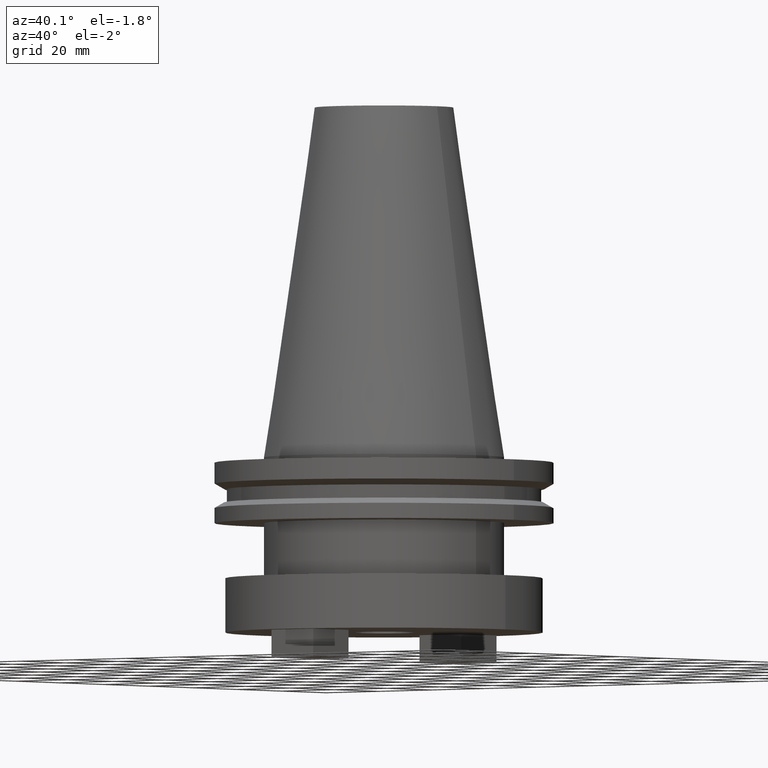
[diagram: clean part render]
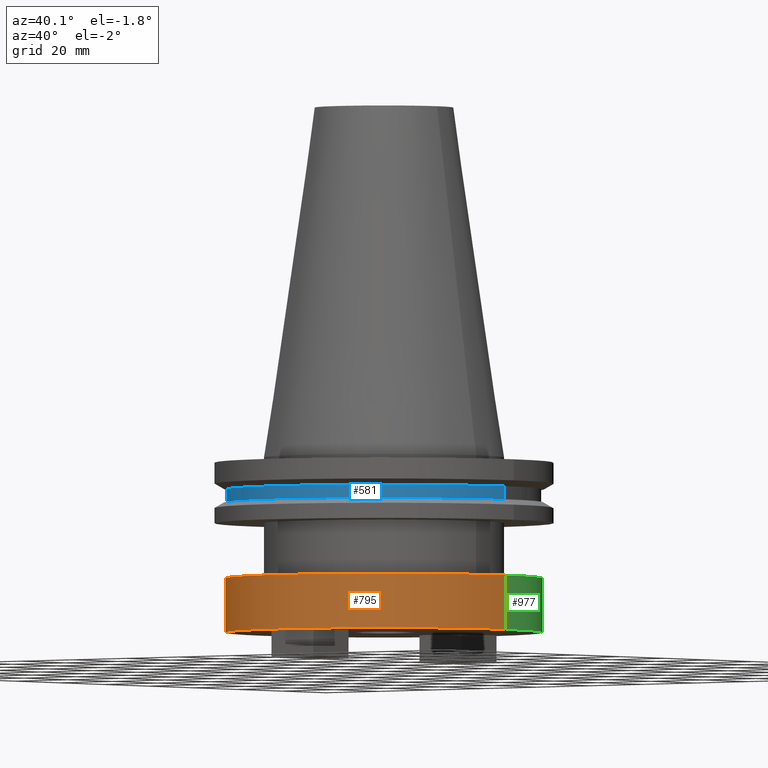
[diagram: same view with three faces highlighted in distinct colors, each labeled with its STEP entity id]
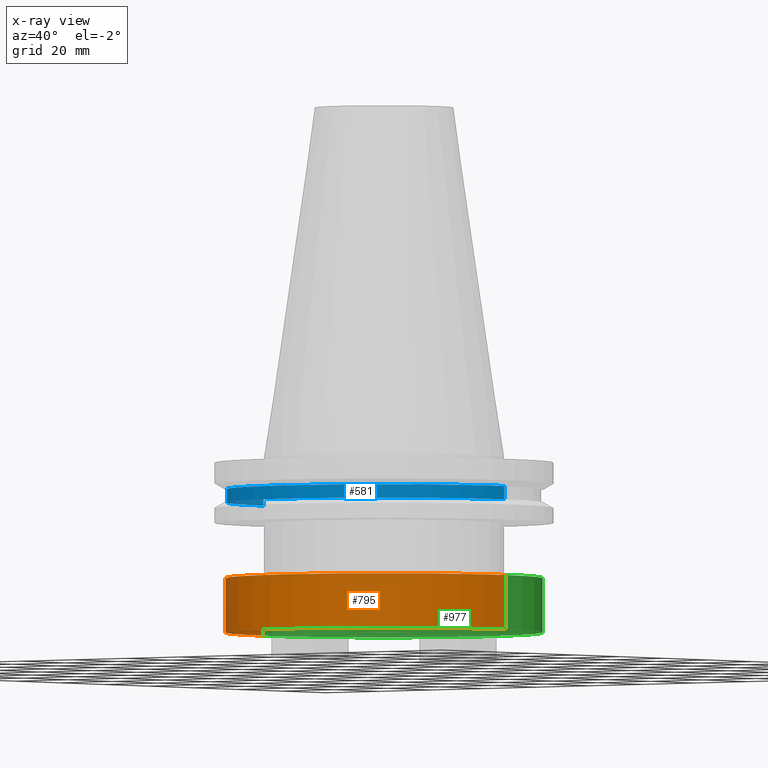
[diagram: x-ray of the same camera — body ghosted, the three highlighted faces saturated]
A machine part, auxiliary view with three faces highlighted in distinct colors.
The next image is the same camera in x-ray (body ghosted, the three faces saturated) — at least one of them is partly hidden behind the body in this view.
Their STEP definitions:

[orange] entity #795 — the highlighted cylindrical surface (partial cylindrical patch) has radius 46.0502 mm, axis along (-0, -0, 1).
#93 = EDGE_LOOP ( 'NONE', ( #716, #783, #389, #459 ) ) ;
#133 = CARTESIAN_POINT ( 'NONE',  ( 0.000000000000000000, 0.000000000000000000, -50.80000000000001137 ) ) ;
#153 = DIRECTION ( 'NONE',  ( -0.000000000000000000, -0.000000000000000000, 1.000000000000000000 ) ) ;
#169 = DIRECTION ( 'NONE',  ( -0.000000000000000000, -0.000000000000000000, 1.000000000000000000 ) ) ;
#177 = CARTESIAN_POINT ( 'NONE',  ( -46.05019999999999669, 5.639523003009544618E-15, 0.000000000000000000 ) ) ;
#208 = AXIS2_PLACEMENT_3D ( 'NONE', #293, #153, #490 ) ;
#214 = FACE_OUTER_BOUND ( 'NONE', #93, .T. ) ;
#236 = DIRECTION ( 'NONE',  ( 1.000000000000000000, 0.000000000000000000, 0.000000000000000000 ) ) ;
#256 = CARTESIAN_POINT ( 'NONE',  ( -46.05019999999999669, 5.639523003009544618E-15, -50.80000000000001137 ) ) ;
#267 = EDGE_CURVE ( 'NONE', #927, #338, #557, .T. ) ;
#293 = CARTESIAN_POINT ( 'NONE',  ( 0.000000000000000000, 0.000000000000000000, 0.000000000000000000 ) ) ;
#307 = DIRECTION ( 'NONE',  ( -0.000000000000000000, -0.000000000000000000, 1.000000000000000000 ) ) ;
#313 = LINE ( 'NONE', #731, #438 ) ;
#338 = VERTEX_POINT ( 'NONE', #569 ) ;
#370 = DIRECTION ( 'NONE',  ( 1.000000000000000000, 0.000000000000000000, 0.000000000000000000 ) ) ;
#389 = ORIENTED_EDGE ( 'NONE', *, *, #610, .T. ) ;
#438 = VECTOR ( 'NONE', #307, 1000.000000000000000 ) ;
#454 = VERTEX_POINT ( 'NONE', #766 ) ;
#459 = ORIENTED_EDGE ( 'NONE', *, *, #794, .F. ) ;
#490 = DIRECTION ( 'NONE',  ( 1.000000000000000000, 0.000000000000000000, 0.000000000000000000 ) ) ;
#557 = CIRCLE ( 'NONE', #876, 46.05019999999999669 ) ;
#569 = CARTESIAN_POINT ( 'NONE',  ( 46.05019999999999669, 0.000000000000000000, -50.80000000000001137 ) ) ;
#593 = VERTEX_POINT ( 'NONE', #994 ) ;
#610 = EDGE_CURVE ( 'NONE', #338, #454, #313, .T. ) ;
#629 = VECTOR ( 'NONE', #169, 1000.000000000000000 ) ;
#655 = DIRECTION ( 'NONE',  ( -0.000000000000000000, -0.000000000000000000, 1.000000000000000000 ) ) ;
#690 = AXIS2_PLACEMENT_3D ( 'NONE', #1076, #655, #236 ) ;
#716 = ORIENTED_EDGE ( 'NONE', *, *, #906, .F. ) ;
#731 = CARTESIAN_POINT ( 'NONE',  ( 46.05019999999999669, 0.000000000000000000, 0.000000000000000000 ) ) ;
#747 = LINE ( 'NONE', #177, #629 ) ;
#766 = CARTESIAN_POINT ( 'NONE',  ( 46.05019999999999669, 0.000000000000000000, -35.04999999999999716 ) ) ;
#783 = ORIENTED_EDGE ( 'NONE', *, *, #267, .T. ) ;
#794 = EDGE_CURVE ( 'NONE', #593, #454, #830, .T. ) ;
#795 = ADVANCED_FACE ( 'NONE', ( #214 ), #905, .T. ) ;
#802 = DIRECTION ( 'NONE',  ( -0.000000000000000000, -0.000000000000000000, 1.000000000000000000 ) ) ;
#830 = CIRCLE ( 'NONE', #690, 46.05019999999999669 ) ;
#876 = AXIS2_PLACEMENT_3D ( 'NONE', #133, #802, #370 ) ;
#905 = CYLINDRICAL_SURFACE ( 'NONE', #208, 46.05019999999999669 ) ;
#906 = EDGE_CURVE ( 'NONE', #927, #593, #747, .T. ) ;
#927 = VERTEX_POINT ( 'NONE', #256 ) ;
#994 = CARTESIAN_POINT ( 'NONE',  ( -46.05019999999999669, 5.639523003009544618E-15, -35.04999999999999716 ) ) ;
#1076 = CARTESIAN_POINT ( 'NONE',  ( 0.000000000000000000, 0.000000000000000000, -35.04999999999999716 ) ) ;

[blue] entity #581 — the highlighted cylindrical surface (partial cylindrical patch) has radius 45.645 mm, axis along (-0, -0, 1).
#70 = AXIS2_PLACEMENT_3D ( 'NONE', #726, #468, #220 ) ;
#111 = DIRECTION ( 'NONE',  ( 1.000000000000000000, 0.000000000000000000, 0.000000000000000000 ) ) ;
#148 = EDGE_LOOP ( 'NONE', ( #343, #488, #357, #1044 ) ) ;
#150 = CYLINDRICAL_SURFACE ( 'NONE', #206, 45.64500000000000313 ) ;
#185 = DIRECTION ( 'NONE',  ( -0.000000000000000000, -0.000000000000000000, 1.000000000000000000 ) ) ;
#200 = DIRECTION ( 'NONE',  ( -0.000000000000000000, -0.000000000000000000, 1.000000000000000000 ) ) ;
#206 = AXIS2_PLACEMENT_3D ( 'NONE', #825, #1068, #907 ) ;
#217 = VERTEX_POINT ( 'NONE', #392 ) ;
#219 = FACE_OUTER_BOUND ( 'NONE', #148, .T. ) ;
#220 = DIRECTION ( 'NONE',  ( 1.000000000000000000, 0.000000000000000000, 0.000000000000000000 ) ) ;
#240 = CARTESIAN_POINT ( 'NONE',  ( -45.64500000000000313, 5.589900314708094957E-15, 101.5999999999999943 ) ) ;
#273 = EDGE_CURVE ( 'NONE', #527, #299, #703, .T. ) ;
#299 = VERTEX_POINT ( 'NONE', #1043 ) ;
#314 = VECTOR ( 'NONE', #185, 1000.000000000000000 ) ;
#329 = VERTEX_POINT ( 'NONE', #1079 ) ;
#341 = LINE ( 'NONE', #240, #911 ) ;
#343 = ORIENTED_EDGE ( 'NONE', *, *, #963, .F. ) ;
#357 = ORIENTED_EDGE ( 'NONE', *, *, #555, .T. ) ;
#392 = CARTESIAN_POINT ( 'NONE',  ( 45.64500000000000313, 0.000000000000000000, -9.204999999999991189 ) ) ;
#468 = DIRECTION ( 'NONE',  ( -0.000000000000000000, -0.000000000000000000, 1.000000000000000000 ) ) ;
#488 = ORIENTED_EDGE ( 'NONE', *, *, #273, .T. ) ;
#516 = DIRECTION ( 'NONE',  ( -0.000000000000000000, -0.000000000000000000, 1.000000000000000000 ) ) ;
#527 = VERTEX_POINT ( 'NONE', #1052 ) ;
#555 = EDGE_CURVE ( 'NONE', #299, #217, #853, .T. ) ;
#580 = AXIS2_PLACEMENT_3D ( 'NONE', #872, #200, #111 ) ;
#581 = ADVANCED_FACE ( 'NONE', ( #219 ), #150, .T. ) ;
#703 = CIRCLE ( 'NONE', #70, 45.64500000000000313 ) ;
#712 = CARTESIAN_POINT ( 'NONE',  ( 45.64500000000000313, 0.000000000000000000, 101.5999999999999943 ) ) ;
#726 = CARTESIAN_POINT ( 'NONE',  ( 0.000000000000000000, 0.000000000000000000, -13.05499999999999794 ) ) ;
#825 = CARTESIAN_POINT ( 'NONE',  ( 0.000000000000000000, 0.000000000000000000, 101.5999999999999943 ) ) ;
#853 = LINE ( 'NONE', #712, #314 ) ;
#872 = CARTESIAN_POINT ( 'NONE',  ( 0.000000000000000000, 0.000000000000000000, -9.204999999999991189 ) ) ;
#907 = DIRECTION ( 'NONE',  ( 1.000000000000000000, 0.000000000000000000, 0.000000000000000000 ) ) ;
#911 = VECTOR ( 'NONE', #516, 1000.000000000000000 ) ;
#963 = EDGE_CURVE ( 'NONE', #527, #329, #341, .T. ) ;
#1001 = EDGE_CURVE ( 'NONE', #329, #217, #1054, .T. ) ;
#1043 = CARTESIAN_POINT ( 'NONE',  ( 45.64500000000000313, 0.000000000000000000, -13.05499999999999794 ) ) ;
#1044 = ORIENTED_EDGE ( 'NONE', *, *, #1001, .F. ) ;
#1052 = CARTESIAN_POINT ( 'NONE',  ( -45.64500000000000313, 5.589900314708094957E-15, -13.05499999999999794 ) ) ;
#1054 = CIRCLE ( 'NONE', #580, 45.64500000000000313 ) ;
#1068 = DIRECTION ( 'NONE',  ( -0.000000000000000000, -0.000000000000000000, 1.000000000000000000 ) ) ;
#1079 = CARTESIAN_POINT ( 'NONE',  ( -45.64500000000000313, 5.589900314708094957E-15, -9.204999999999991189 ) ) ;

[green] entity #977 — the highlighted cylindrical surface (partial cylindrical patch) has radius 46.0502 mm, axis along (-0, -0, 1).
#22 = AXIS2_PLACEMENT_3D ( 'NONE', #349, #535, #634 ) ;
#72 = CARTESIAN_POINT ( 'NONE',  ( 0.000000000000000000, 0.000000000000000000, -35.04999999999999716 ) ) ;
#89 = AXIS2_PLACEMENT_3D ( 'NONE', #668, #1013, #925 ) ;
#169 = DIRECTION ( 'NONE',  ( -0.000000000000000000, -0.000000000000000000, 1.000000000000000000 ) ) ;
#177 = CARTESIAN_POINT ( 'NONE',  ( -46.05019999999999669, 5.639523003009544618E-15, 0.000000000000000000 ) ) ;
#233 = DIRECTION ( 'NONE',  ( 1.000000000000000000, 0.000000000000000000, 0.000000000000000000 ) ) ;
#256 = CARTESIAN_POINT ( 'NONE',  ( -46.05019999999999669, 5.639523003009544618E-15, -50.80000000000001137 ) ) ;
#307 = DIRECTION ( 'NONE',  ( -0.000000000000000000, -0.000000000000000000, 1.000000000000000000 ) ) ;
#313 = LINE ( 'NONE', #731, #438 ) ;
#323 = EDGE_CURVE ( 'NONE', #454, #593, #943, .T. ) ;
#324 = ORIENTED_EDGE ( 'NONE', *, *, #906, .T. ) ;
#338 = VERTEX_POINT ( 'NONE', #569 ) ;
#349 = CARTESIAN_POINT ( 'NONE',  ( 0.000000000000000000, 0.000000000000000000, -50.80000000000001137 ) ) ;
#413 = CYLINDRICAL_SURFACE ( 'NONE', #89, 46.05019999999999669 ) ;
#438 = VECTOR ( 'NONE', #307, 1000.000000000000000 ) ;
#454 = VERTEX_POINT ( 'NONE', #766 ) ;
#535 = DIRECTION ( 'NONE',  ( -0.000000000000000000, -0.000000000000000000, 1.000000000000000000 ) ) ;
#542 = EDGE_CURVE ( 'NONE', #338, #927, #577, .T. ) ;
#569 = CARTESIAN_POINT ( 'NONE',  ( 46.05019999999999669, 0.000000000000000000, -50.80000000000001137 ) ) ;
#577 = CIRCLE ( 'NONE', #22, 46.05019999999999669 ) ;
#593 = VERTEX_POINT ( 'NONE', #994 ) ;
#610 = EDGE_CURVE ( 'NONE', #338, #454, #313, .T. ) ;
#629 = VECTOR ( 'NONE', #169, 1000.000000000000000 ) ;
#634 = DIRECTION ( 'NONE',  ( 1.000000000000000000, 0.000000000000000000, 0.000000000000000000 ) ) ;
#668 = CARTESIAN_POINT ( 'NONE',  ( 0.000000000000000000, 0.000000000000000000, 0.000000000000000000 ) ) ;
#711 = ORIENTED_EDGE ( 'NONE', *, *, #542, .T. ) ;
#731 = CARTESIAN_POINT ( 'NONE',  ( 46.05019999999999669, 0.000000000000000000, 0.000000000000000000 ) ) ;
#747 = LINE ( 'NONE', #177, #629 ) ;
#763 = ORIENTED_EDGE ( 'NONE', *, *, #610, .F. ) ;
#766 = CARTESIAN_POINT ( 'NONE',  ( 46.05019999999999669, 0.000000000000000000, -35.04999999999999716 ) ) ;
#824 = ORIENTED_EDGE ( 'NONE', *, *, #323, .F. ) ;
#846 = EDGE_LOOP ( 'NONE', ( #711, #324, #824, #763 ) ) ;
#860 = FACE_OUTER_BOUND ( 'NONE', #846, .T. ) ;
#906 = EDGE_CURVE ( 'NONE', #927, #593, #747, .T. ) ;
#909 = DIRECTION ( 'NONE',  ( -0.000000000000000000, -0.000000000000000000, 1.000000000000000000 ) ) ;
#925 = DIRECTION ( 'NONE',  ( 1.000000000000000000, 0.000000000000000000, 0.000000000000000000 ) ) ;
#927 = VERTEX_POINT ( 'NONE', #256 ) ;
#943 = CIRCLE ( 'NONE', #1053, 46.05019999999999669 ) ;
#977 = ADVANCED_FACE ( 'NONE', ( #860 ), #413, .T. ) ;
#994 = CARTESIAN_POINT ( 'NONE',  ( -46.05019999999999669, 5.639523003009544618E-15, -35.04999999999999716 ) ) ;
#1013 = DIRECTION ( 'NONE',  ( -0.000000000000000000, -0.000000000000000000, 1.000000000000000000 ) ) ;
#1053 = AXIS2_PLACEMENT_3D ( 'NONE', #72, #909, #233 ) ;